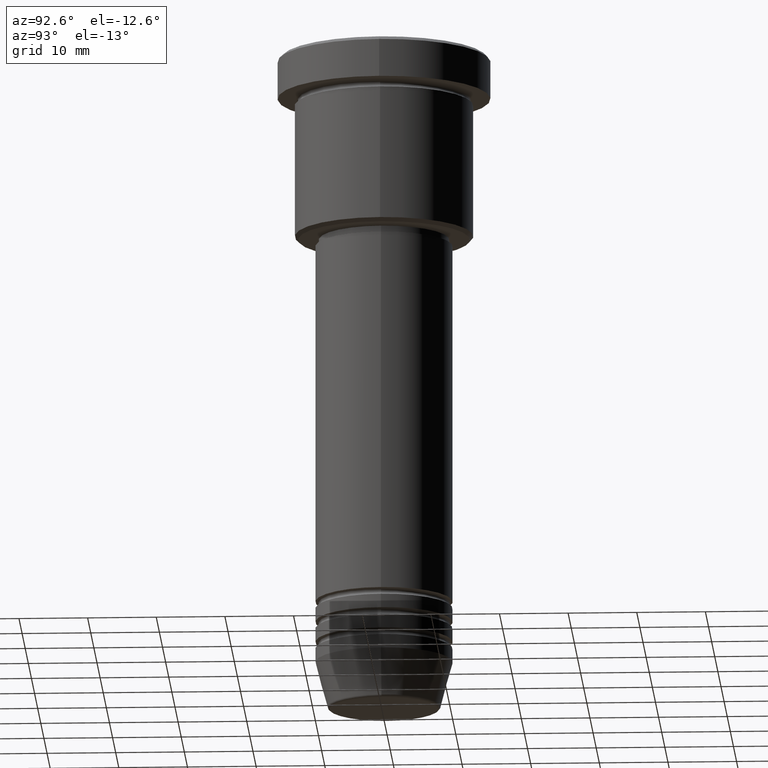
[diagram: clean part render]
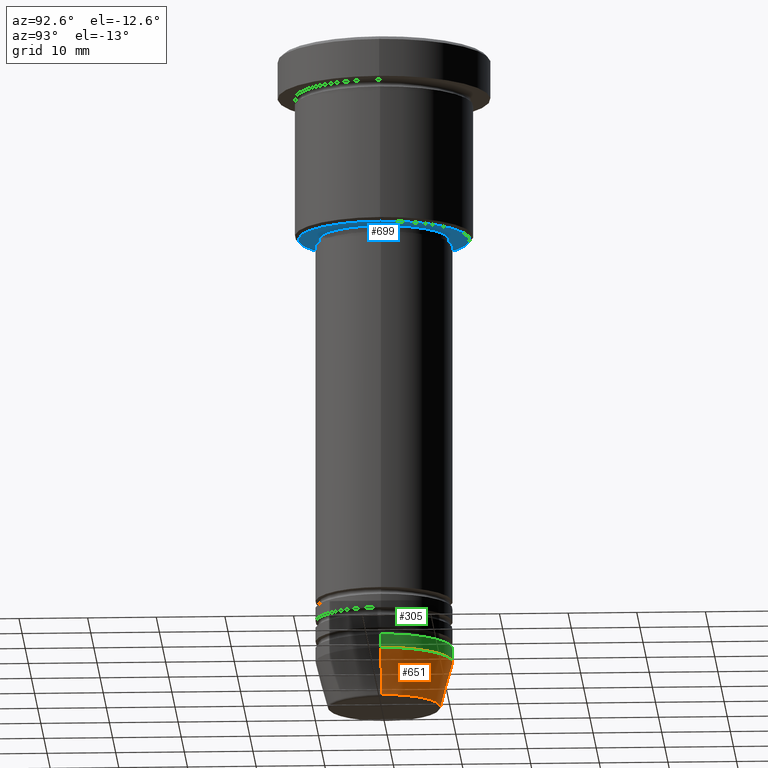
[diagram: same view with three faces highlighted in distinct colors, each labeled with its STEP entity id]
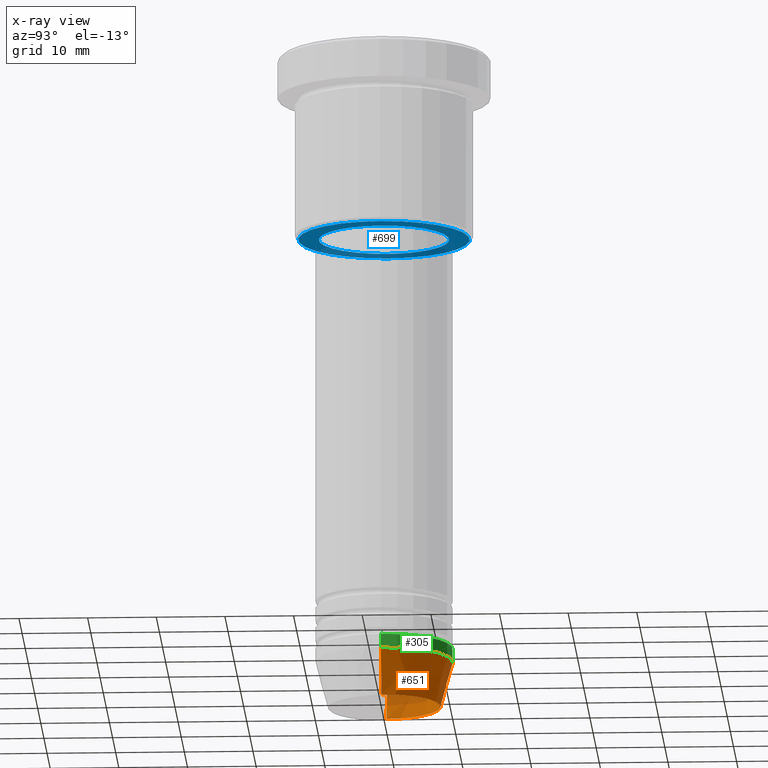
[diagram: x-ray of the same camera — body ghosted, the three highlighted faces saturated]
A machine part, auxiliary view with three faces highlighted in distinct colors.
The next image is the same camera in x-ray (body ghosted, the three faces saturated) — at least one of them is partly hidden behind the body in this view.
Their STEP definitions:

[orange] entity #651 — the highlighted conical surface has half-angle 15 deg.
#25 = CONICAL_SURFACE ( 'NONE', #964, 10.00000000000000000, 0.2617993877991500740 ) ;
#37 = CARTESIAN_POINT ( 'NONE',  ( -8.223655072137187716, 1.115877042642911856E-15, -96.62940952255127058 ) ) ;
#45 = CIRCLE ( 'NONE', #778, 8.223655072137187716 ) ;
#49 = FACE_OUTER_BOUND ( 'NONE', #430, .T. ) ;
#87 = CARTESIAN_POINT ( 'NONE',  ( 0.000000000000000000, 0.000000000000000000, -96.62940952255127058 ) ) ;
#140 = VECTOR ( 'NONE', #626, 1000.000000000000000 ) ;
#179 = EDGE_CURVE ( 'NONE', #493, #1008, #1007, .T. ) ;
#195 = DIRECTION ( 'NONE',  ( -0.000000000000000000, -0.000000000000000000, 1.000000000000000000 ) ) ;
#202 = CARTESIAN_POINT ( 'NONE',  ( 10.00000000000000000, 0.000000000000000000, -90.00000000000000000 ) ) ;
#257 = CIRCLE ( 'NONE', #735, 10.00000000000000000 ) ;
#264 = DIRECTION ( 'NONE',  ( 0.2588190451025213501, 0.000000000000000000, 0.9659258262890680902 ) ) ;
#325 = DIRECTION ( 'NONE',  ( 1.000000000000000000, 0.000000000000000000, 0.000000000000000000 ) ) ;
#336 = ORIENTED_EDGE ( 'NONE', *, *, #869, .T. ) ;
#346 = CARTESIAN_POINT ( 'NONE',  ( -10.00000000000000000, 1.224646799147353256E-15, -90.00000000000000000 ) ) ;
#351 = VERTEX_POINT ( 'NONE', #656 ) ;
#430 = EDGE_LOOP ( 'NONE', ( #336, #505, #586, #743 ) ) ;
#450 = CARTESIAN_POINT ( 'NONE',  ( 0.000000000000000000, 0.000000000000000000, -90.00000000000000000 ) ) ;
#466 = CARTESIAN_POINT ( 'NONE',  ( 8.223655072137187716, 0.000000000000000000, -96.62940952255127058 ) ) ;
#493 = VERTEX_POINT ( 'NONE', #466 ) ;
#505 = ORIENTED_EDGE ( 'NONE', *, *, #798, .T. ) ;
#556 = VECTOR ( 'NONE', #264, 1000.000000000000000 ) ;
#586 = ORIENTED_EDGE ( 'NONE', *, *, #903, .F. ) ;
#591 = CARTESIAN_POINT ( 'NONE',  ( 0.000000000000000000, 0.000000000000000000, -90.00000000000000000 ) ) ;
#626 = DIRECTION ( 'NONE',  ( -0.2588190451025213501, 3.169619151431772337E-17, 0.9659258262890680902 ) ) ;
#651 = ADVANCED_FACE ( 'NONE', ( #49 ), #25, .T. ) ;
#656 = CARTESIAN_POINT ( 'NONE',  ( -10.00000000000000000, 1.224646799147353256E-15, -90.00000000000000000 ) ) ;
#718 = LINE ( 'NONE', #346, #140 ) ;
#735 = AXIS2_PLACEMENT_3D ( 'NONE', #450, #1109, #899 ) ;
#743 = ORIENTED_EDGE ( 'NONE', *, *, #179, .F. ) ;
#778 = AXIS2_PLACEMENT_3D ( 'NONE', #87, #195, #906 ) ;
#798 = EDGE_CURVE ( 'NONE', #1170, #351, #718, .T. ) ;
#850 = DIRECTION ( 'NONE',  ( -0.000000000000000000, -0.000000000000000000, 1.000000000000000000 ) ) ;
#869 = EDGE_CURVE ( 'NONE', #493, #1170, #45, .T. ) ;
#896 = CARTESIAN_POINT ( 'NONE',  ( 10.00000000000000000, 0.000000000000000000, -90.00000000000000000 ) ) ;
#899 = DIRECTION ( 'NONE',  ( 1.000000000000000000, 0.000000000000000000, 0.000000000000000000 ) ) ;
#903 = EDGE_CURVE ( 'NONE', #1008, #351, #257, .T. ) ;
#906 = DIRECTION ( 'NONE',  ( 1.000000000000000000, 0.000000000000000000, 0.000000000000000000 ) ) ;
#964 = AXIS2_PLACEMENT_3D ( 'NONE', #591, #850, #325 ) ;
#1007 = LINE ( 'NONE', #896, #556 ) ;
#1008 = VERTEX_POINT ( 'NONE', #202 ) ;
#1109 = DIRECTION ( 'NONE',  ( -0.000000000000000000, -0.000000000000000000, 1.000000000000000000 ) ) ;
#1170 = VERTEX_POINT ( 'NONE', #37 ) ;

[blue] entity #699 — the highlighted planar face has unit normal (0, 0, -1).
#61 = EDGE_CURVE ( 'NONE', #309, #564, #234, .T. ) ;
#63 = AXIS2_PLACEMENT_3D ( 'NONE', #894, #421, #1158 ) ;
#165 = CARTESIAN_POINT ( 'NONE',  ( -9.500000000000000000, 1.163414459189985485E-15, -27.00000000000000000 ) ) ;
#203 = EDGE_CURVE ( 'NONE', #686, #301, #842, .T. ) ;
#216 = CARTESIAN_POINT ( 'NONE',  ( 12.49999999999996980, 0.000000000000000000, -26.99999999999999645 ) ) ;
#234 = CIRCLE ( 'NONE', #382, 12.49999999999996980 ) ;
#253 = CARTESIAN_POINT ( 'NONE',  ( 0.000000000000000000, 0.000000000000000000, -27.00000000000000000 ) ) ;
#290 = ORIENTED_EDGE ( 'NONE', *, *, #747, .T. ) ;
#301 = VERTEX_POINT ( 'NONE', #1137 ) ;
#309 = VERTEX_POINT ( 'NONE', #467 ) ;
#342 = DIRECTION ( 'NONE',  ( -1.000000000000000000, 0.000000000000000000, 0.000000000000000000 ) ) ;
#344 = CARTESIAN_POINT ( 'NONE',  ( 0.000000000000000000, 0.000000000000000000, -26.99999999999999645 ) ) ;
#382 = AXIS2_PLACEMENT_3D ( 'NONE', #344, #504, #342 ) ;
#421 = DIRECTION ( 'NONE',  ( 0.000000000000000000, 0.000000000000000000, -1.000000000000000000 ) ) ;
#428 = CARTESIAN_POINT ( 'NONE',  ( 0.000000000000000000, 13.00000000000000000, -26.99999999999999645 ) ) ;
#467 = CARTESIAN_POINT ( 'NONE',  ( -12.49999999999996980, 1.561424668912873336E-15, -26.99999999999999645 ) ) ;
#504 = DIRECTION ( 'NONE',  ( 0.000000000000000000, 0.000000000000000000, -1.000000000000000000 ) ) ;
#519 = AXIS2_PLACEMENT_3D ( 'NONE', #428, #802, #524 ) ;
#524 = DIRECTION ( 'NONE',  ( -1.000000000000000000, 0.000000000000000000, -0.000000000000000000 ) ) ;
#564 = VERTEX_POINT ( 'NONE', #216 ) ;
#650 = DIRECTION ( 'NONE',  ( -0.000000000000000000, -0.000000000000000000, 1.000000000000000000 ) ) ;
#686 = VERTEX_POINT ( 'NONE', #165 ) ;
#699 = ADVANCED_FACE ( 'NONE', ( #873, #1151 ), #701, .T. ) ;
#701 = PLANE ( 'NONE',  #519 ) ;
#747 = EDGE_CURVE ( 'NONE', #301, #686, #987, .T. ) ;
#780 = CIRCLE ( 'NONE', #63, 12.49999999999996980 ) ;
#797 = DIRECTION ( 'NONE',  ( 1.000000000000000000, 0.000000000000000000, 0.000000000000000000 ) ) ;
#802 = DIRECTION ( 'NONE',  ( 0.000000000000000000, 0.000000000000000000, -1.000000000000000000 ) ) ;
#816 = EDGE_CURVE ( 'NONE', #564, #309, #780, .T. ) ;
#842 = CIRCLE ( 'NONE', #862, 9.500000000000000000 ) ;
#862 = AXIS2_PLACEMENT_3D ( 'NONE', #1180, #650, #1093 ) ;
#873 = FACE_OUTER_BOUND ( 'NONE', #1133, .T. ) ;
#877 = EDGE_LOOP ( 'NONE', ( #290, #935 ) ) ;
#885 = DIRECTION ( 'NONE',  ( -0.000000000000000000, -0.000000000000000000, 1.000000000000000000 ) ) ;
#894 = CARTESIAN_POINT ( 'NONE',  ( 0.000000000000000000, 0.000000000000000000, -26.99999999999999645 ) ) ;
#935 = ORIENTED_EDGE ( 'NONE', *, *, #203, .T. ) ;
#987 = CIRCLE ( 'NONE', #1173, 9.500000000000000000 ) ;
#1089 = ORIENTED_EDGE ( 'NONE', *, *, #61, .T. ) ;
#1093 = DIRECTION ( 'NONE',  ( 1.000000000000000000, 0.000000000000000000, 0.000000000000000000 ) ) ;
#1133 = EDGE_LOOP ( 'NONE', ( #1142, #1089 ) ) ;
#1137 = CARTESIAN_POINT ( 'NONE',  ( 9.500000000000000000, 0.000000000000000000, -27.00000000000000000 ) ) ;
#1142 = ORIENTED_EDGE ( 'NONE', *, *, #816, .T. ) ;
#1151 = FACE_BOUND ( 'NONE', #877, .T. ) ;
#1158 = DIRECTION ( 'NONE',  ( -1.000000000000000000, 0.000000000000000000, 0.000000000000000000 ) ) ;
#1173 = AXIS2_PLACEMENT_3D ( 'NONE', #253, #885, #797 ) ;
#1180 = CARTESIAN_POINT ( 'NONE',  ( 0.000000000000000000, 0.000000000000000000, -27.00000000000000000 ) ) ;

[green] entity #305 — the highlighted cylindrical surface (partial cylindrical patch) has radius 10 mm, axis along (-0, -0, 1).
#71 = CARTESIAN_POINT ( 'NONE',  ( 0.000000000000000000, 0.000000000000000000, -88.00000000000000000 ) ) ;
#84 = DIRECTION ( 'NONE',  ( -0.000000000000000000, -0.000000000000000000, 1.000000000000000000 ) ) ;
#123 = EDGE_CURVE ( 'NONE', #1008, #1132, #355, .T. ) ;
#137 = EDGE_CURVE ( 'NONE', #1132, #782, #917, .T. ) ;
#172 = DIRECTION ( 'NONE',  ( -0.000000000000000000, -0.000000000000000000, 1.000000000000000000 ) ) ;
#199 = FACE_OUTER_BOUND ( 'NONE', #286, .T. ) ;
#202 = CARTESIAN_POINT ( 'NONE',  ( 10.00000000000000000, 0.000000000000000000, -90.00000000000000000 ) ) ;
#257 = CIRCLE ( 'NONE', #735, 10.00000000000000000 ) ;
#272 = AXIS2_PLACEMENT_3D ( 'NONE', #1125, #948, #752 ) ;
#286 = EDGE_LOOP ( 'NONE', ( #1042, #528, #672, #570 ) ) ;
#305 = ADVANCED_FACE ( 'NONE', ( #199 ), #585, .T. ) ;
#351 = VERTEX_POINT ( 'NONE', #656 ) ;
#355 = LINE ( 'NONE', #724, #791 ) ;
#424 = VECTOR ( 'NONE', #771, 1000.000000000000000 ) ;
#450 = CARTESIAN_POINT ( 'NONE',  ( 0.000000000000000000, 0.000000000000000000, -90.00000000000000000 ) ) ;
#528 = ORIENTED_EDGE ( 'NONE', *, *, #1006, .T. ) ;
#550 = DIRECTION ( 'NONE',  ( 1.000000000000000000, 0.000000000000000000, 0.000000000000000000 ) ) ;
#570 = ORIENTED_EDGE ( 'NONE', *, *, #123, .F. ) ;
#578 = AXIS2_PLACEMENT_3D ( 'NONE', #71, #172, #550 ) ;
#581 = CARTESIAN_POINT ( 'NONE',  ( -10.00000000000000000, 1.224646799147353256E-15, 0.000000000000000000 ) ) ;
#585 = CYLINDRICAL_SURFACE ( 'NONE', #272, 10.00000000000000000 ) ;
#656 = CARTESIAN_POINT ( 'NONE',  ( -10.00000000000000000, 1.224646799147353256E-15, -90.00000000000000000 ) ) ;
#672 = ORIENTED_EDGE ( 'NONE', *, *, #137, .F. ) ;
#724 = CARTESIAN_POINT ( 'NONE',  ( 10.00000000000000000, 0.000000000000000000, 0.000000000000000000 ) ) ;
#735 = AXIS2_PLACEMENT_3D ( 'NONE', #450, #1109, #899 ) ;
#752 = DIRECTION ( 'NONE',  ( 1.000000000000000000, 0.000000000000000000, 0.000000000000000000 ) ) ;
#771 = DIRECTION ( 'NONE',  ( -0.000000000000000000, -0.000000000000000000, 1.000000000000000000 ) ) ;
#782 = VERTEX_POINT ( 'NONE', #1083 ) ;
#791 = VECTOR ( 'NONE', #84, 1000.000000000000000 ) ;
#899 = DIRECTION ( 'NONE',  ( 1.000000000000000000, 0.000000000000000000, 0.000000000000000000 ) ) ;
#903 = EDGE_CURVE ( 'NONE', #1008, #351, #257, .T. ) ;
#917 = CIRCLE ( 'NONE', #578, 10.00000000000000000 ) ;
#948 = DIRECTION ( 'NONE',  ( -0.000000000000000000, -0.000000000000000000, 1.000000000000000000 ) ) ;
#1006 = EDGE_CURVE ( 'NONE', #351, #782, #1027, .T. ) ;
#1008 = VERTEX_POINT ( 'NONE', #202 ) ;
#1027 = LINE ( 'NONE', #581, #424 ) ;
#1042 = ORIENTED_EDGE ( 'NONE', *, *, #903, .T. ) ;
#1083 = CARTESIAN_POINT ( 'NONE',  ( -10.00000000000000000, 1.224646799147353256E-15, -88.00000000000000000 ) ) ;
#1109 = DIRECTION ( 'NONE',  ( -0.000000000000000000, -0.000000000000000000, 1.000000000000000000 ) ) ;
#1123 = CARTESIAN_POINT ( 'NONE',  ( 10.00000000000000000, 0.000000000000000000, -88.00000000000000000 ) ) ;
#1125 = CARTESIAN_POINT ( 'NONE',  ( 0.000000000000000000, 0.000000000000000000, 0.000000000000000000 ) ) ;
#1132 = VERTEX_POINT ( 'NONE', #1123 ) ;